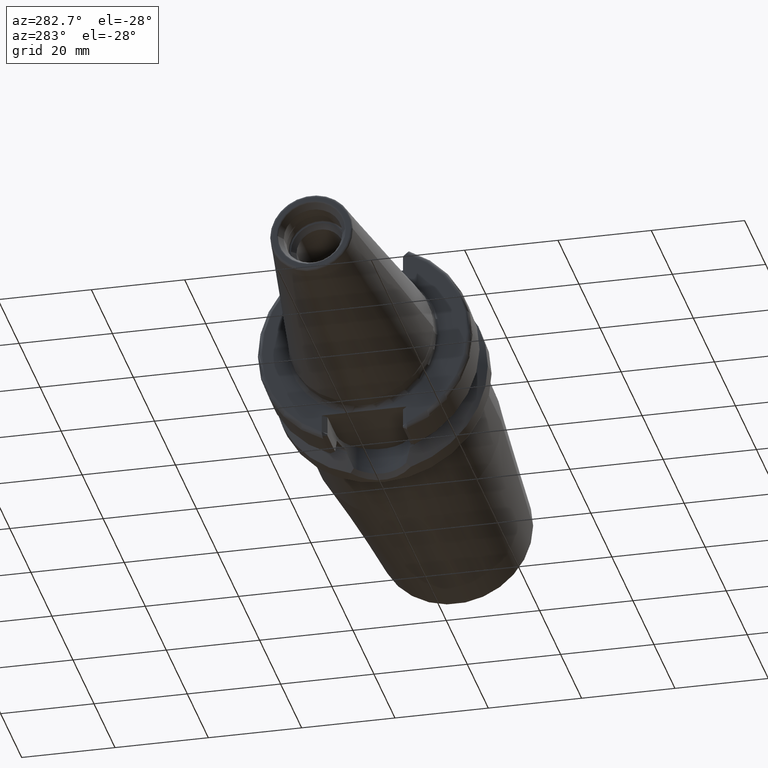
[diagram: clean part render]
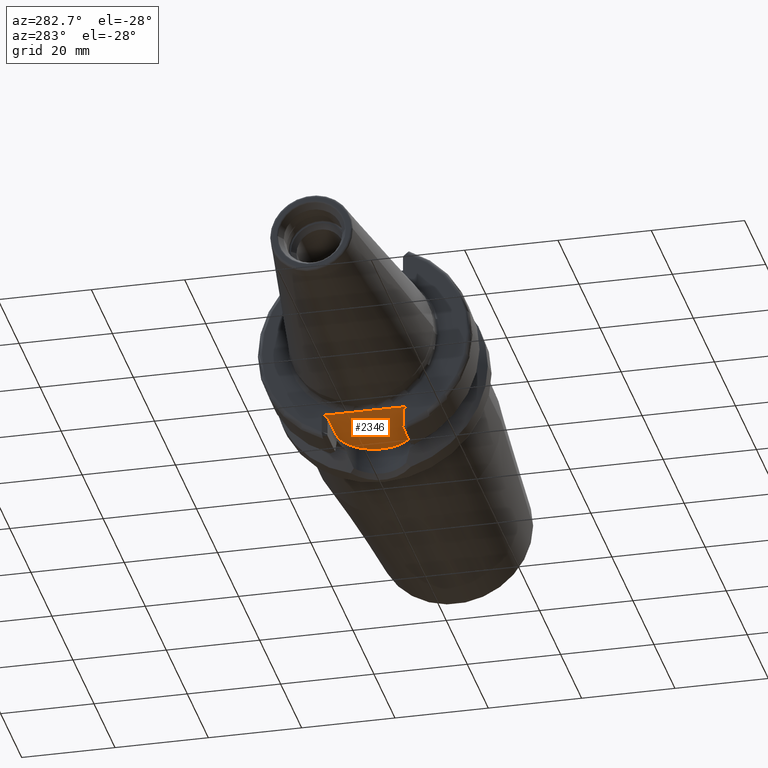
[diagram: same view with one face highlighted and labeled with its STEP entity id]
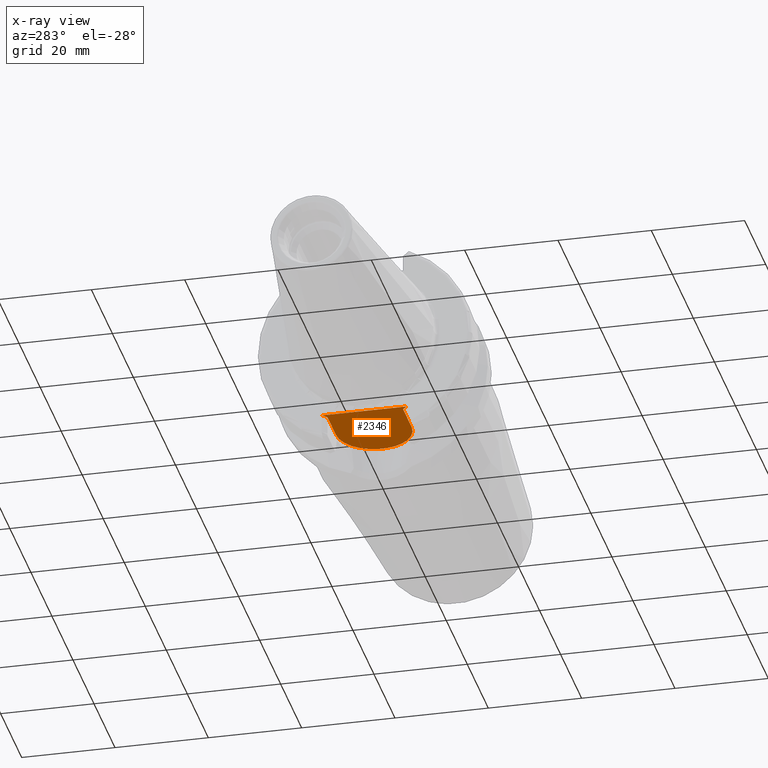
[diagram: x-ray of the same camera — body ghosted, the highlighted face saturated]
A machine part, auxiliary view. The second image highlights one B-rep face of the part: STEP entity #2346.
The next image is the same camera in x-ray: the body ghosted, the highlighted face saturated — about 0% of this face is hidden behind the body in this view.
In plain terms, the highlighted planar face has unit normal (0, 0, 1).
Its self-contained STEP definition (entity closure, byte-faithful):
#116=CARTESIAN_POINT('',(2.E0,2.705203319531E0,-1.615E1));
#117=CARTESIAN_POINT('',(2.E0,2.447526606662E0,-1.615E1));
#118=CARTESIAN_POINT('',(1.994666808081E0,1.932209003313E0,-1.615E1));
#119=CARTESIAN_POINT('',(1.982373677754E0,1.159353659255E0,-1.615E1));
#120=CARTESIAN_POINT('',(1.974023153497E0,3.864772815515E-1,-1.615E1));
#121=CARTESIAN_POINT('',(1.974022947075E0,-3.864455621442E-1,-1.615E1));
#122=CARTESIAN_POINT('',(1.982373315248E0,-1.159330607093E0,-1.615E1));
#123=CARTESIAN_POINT('',(1.994666672291E0,-1.932198796155E0,-1.615E1));
#124=CARTESIAN_POINT('',(2.E0,-2.447523240675E0,-1.615E1));
#125=CARTESIAN_POINT('',(2.E0,-2.705203319531E0,-1.615E1));
#147=DIRECTION('',(7.071067811865E-1,-7.071067811865E-1,0.E0));
#148=VECTOR('',#147,1.414213562373E0);
#149=CARTESIAN_POINT('',(2.E0,9.095E0,-1.615E1));
#150=LINE('',#149,#148);
#724=DIRECTION('',(-7.071067811865E-1,-7.071067811865E-1,0.E0));
#725=VECTOR('',#724,1.414213562373E0);
#726=CARTESIAN_POINT('',(3.E0,-8.095E0,-1.615E1));
#727=LINE('',#726,#725);
#728=DIRECTION('',(-1.E0,0.E0,0.E0));
#729=VECTOR('',#728,8.155E0);
#730=CARTESIAN_POINT('',(1.1155E1,8.095E0,-1.615E1));
#731=LINE('',#730,#729);
#732=DIRECTION('',(0.E0,-1.E0,0.E0));
#733=VECTOR('',#732,6.389796680469E0);
#734=CARTESIAN_POINT('',(2.E0,9.095E0,-1.615E1));
#735=LINE('',#734,#733);
#736=DIRECTION('',(0.E0,-1.E0,0.E0));
#737=VECTOR('',#736,6.389796680469E0);
#738=CARTESIAN_POINT('',(2.E0,-2.705203319531E0,-1.615E1));
#739=LINE('',#738,#737);
#740=DIRECTION('',(1.E0,0.E0,0.E0));
#741=VECTOR('',#740,8.155E0);
#742=CARTESIAN_POINT('',(3.E0,-8.095E0,-1.615E1));
#743=LINE('',#742,#741);
#744=CARTESIAN_POINT('',(1.1155E1,0.E0,-1.615E1));
#745=DIRECTION('',(0.E0,0.E0,1.E0));
#746=DIRECTION('',(0.E0,-1.E0,0.E0));
#747=AXIS2_PLACEMENT_3D('',#744,#745,#746);
#1302=CARTESIAN_POINT('',(1.1155E1,-8.095E0,-1.615E1));
#1303=CARTESIAN_POINT('',(1.1155E1,8.095E0,-1.615E1));
#1304=VERTEX_POINT('',#1302);
#1305=VERTEX_POINT('',#1303);
#1306=CARTESIAN_POINT('',(2.E0,2.705203319531E0,-1.615E1));
#1307=VERTEX_POINT('',#1306);
#1308=CARTESIAN_POINT('',(2.E0,-2.705203319531E0,-1.615E1));
#1309=VERTEX_POINT('',#1308);
#1351=CARTESIAN_POINT('',(3.E0,8.095E0,-1.615E1));
#1353=VERTEX_POINT('',#1351);
#1355=CARTESIAN_POINT('',(2.E0,9.095E0,-1.615E1));
#1357=VERTEX_POINT('',#1355);
#1361=CARTESIAN_POINT('',(2.E0,-9.095E0,-1.615E1));
#1362=VERTEX_POINT('',#1361);
#1363=CARTESIAN_POINT('',(3.E0,-8.095E0,-1.615E1));
#1365=VERTEX_POINT('',#1363);
#2331=CARTESIAN_POINT('',(0.E0,0.E0,-1.615E1));
#2332=DIRECTION('',(0.E0,0.E0,1.E0));
#2333=DIRECTION('',(1.E0,0.E0,0.E0));
#2334=AXIS2_PLACEMENT_3D('',#2331,#2332,#2333);
#2335=PLANE('',#2334);
#2336=ORIENTED_EDGE('',*,*,#1621,.T.);
#2337=ORIENTED_EDGE('',*,*,#1604,.F.);
#2338=ORIENTED_EDGE('',*,*,#1568,.T.);
#2339=ORIENTED_EDGE('',*,*,#1547,.T.);
#2340=ORIENTED_EDGE('',*,*,#1580,.T.);
#2341=ORIENTED_EDGE('',*,*,#2326,.F.);
#2342=ORIENTED_EDGE('',*,*,#1747,.T.);
#2343=ORIENTED_EDGE('',*,*,#1782,.T.);
#2344=EDGE_LOOP('',(#2336,#2337,#2338,#2339,#2340,#2341,#2342,#2343));
#2345=FACE_OUTER_BOUND('',#2344,.F.);
#2346=ADVANCED_FACE('',(#2345),#2335,.F.);
#126=B_SPLINE_CURVE_WITH_KNOTS('',3,(#116,#117,#118,#119,#120,#121,#122,#123,
#124,#125),.UNSPECIFIED.,.F.,.F.,(4,1,1,1,1,1,1,4),(0.E0,1.428571428571E-1,
2.857142857143E-1,4.285714285714E-1,5.714285714286E-1,7.142857142857E-1,
8.571428571429E-1,1.E0),.UNSPECIFIED.);
#748=CIRCLE('',#747,8.095E0);
#1547=EDGE_CURVE('',#1307,#1309,#126,.T.);
#1568=EDGE_CURVE('',#1357,#1307,#735,.T.);
#1580=EDGE_CURVE('',#1309,#1362,#739,.T.);
#1604=EDGE_CURVE('',#1357,#1353,#150,.T.);
#1621=EDGE_CURVE('',#1305,#1353,#731,.T.);
#1747=EDGE_CURVE('',#1365,#1304,#743,.T.);
#1782=EDGE_CURVE('',#1304,#1305,#748,.T.);
#2326=EDGE_CURVE('',#1365,#1362,#727,.T.);